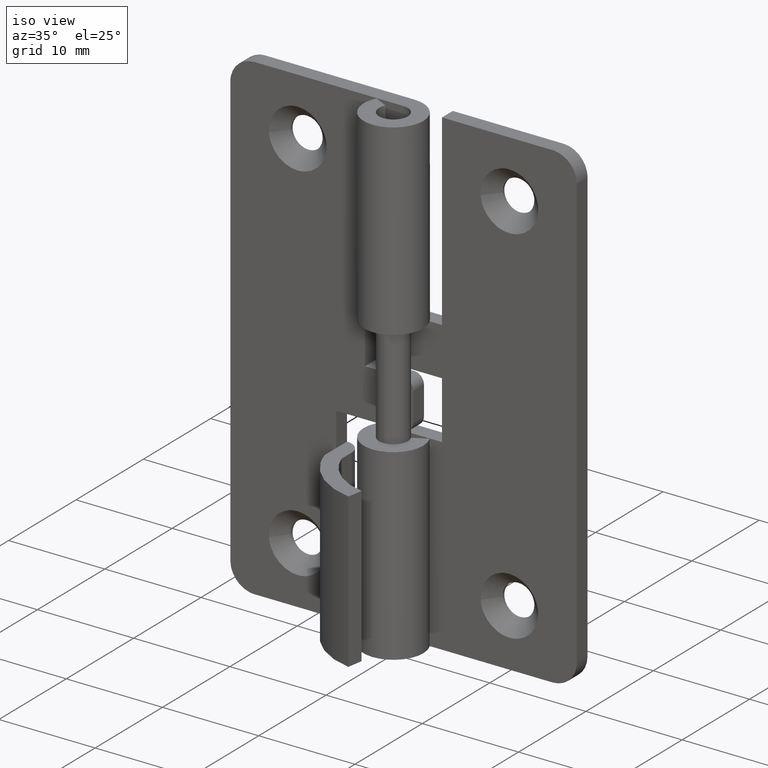
[diagram: clean part render]
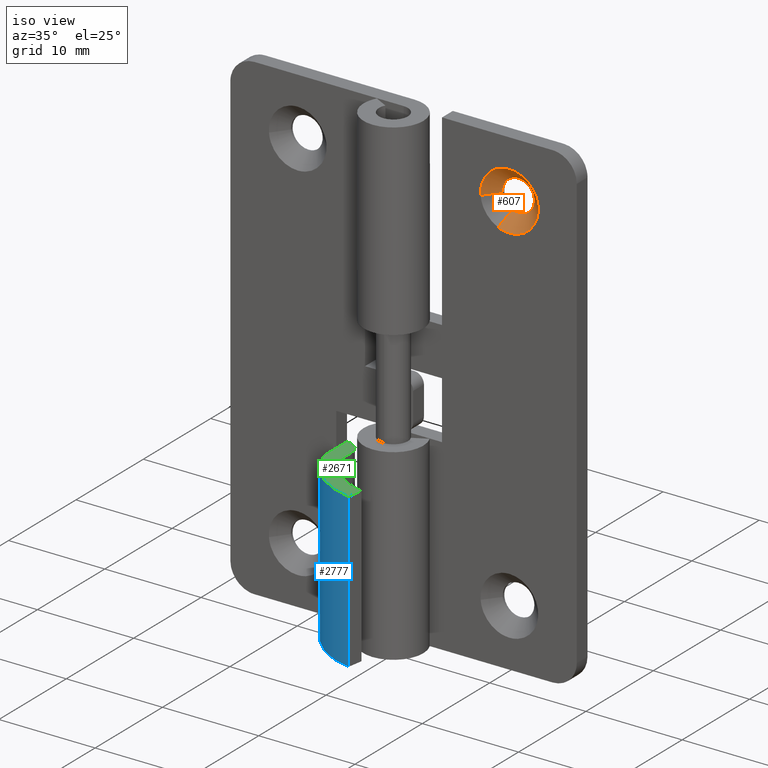
[diagram: same view with three faces highlighted in distinct colors, each labeled with its STEP entity id]
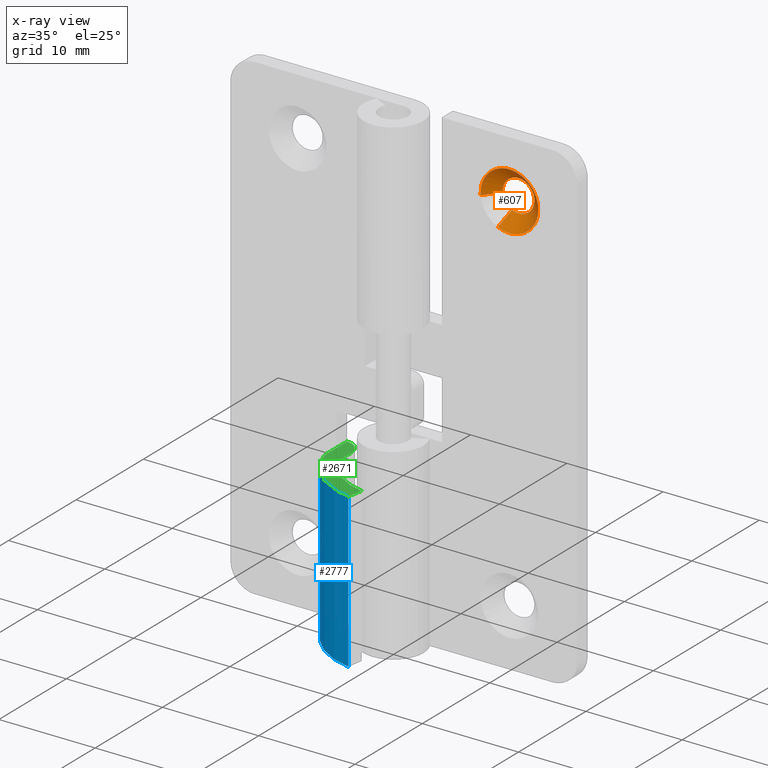
[diagram: x-ray of the same camera — body ghosted, the three highlighted faces saturated]
A machine part, iso view with three faces highlighted in distinct colors.
The next image is the same camera in x-ray (body ghosted, the three faces saturated) — at least one of them is partly hidden behind the body in this view.
Their STEP definitions:

[orange] entity #607 — the highlighted face is a freeform B-spline surface patch.
#437=CARTESIAN_POINT('',(10.354550041056557,2.883750375000003,42.518216257050135));
#438=CARTESIAN_POINT('',(10.724514669456925,2.883750375000004,42.357063419905231));
#439=CARTESIAN_POINT('',(11.126810111720740,2.883750375000003,42.388724757859173));
#440=CARTESIAN_POINT('',(12.738085353861569,2.883750375000003,42.515534869579902));
#441=CARTESIAN_POINT('',(12.611275242140840,2.883750375000003,44.126810111720737));
#442=CARTESIAN_POINT('',(12.484465130420100,2.883750375000003,45.738085353861578));
#443=CARTESIAN_POINT('',(10.873189888279271,2.883750375000003,45.611275242140842));
#444=CARTESIAN_POINT('',(9.261914646138431,2.883750375000003,45.484465130420105));
#445=CARTESIAN_POINT('',(9.388724757859166,2.883750375000003,43.873189888279263));
#446=CARTESIAN_POINT('',(9.788130385592778,1.465390865624893,41.217865353740144));
#447=CARTESIAN_POINT('',(10.482760364805696,1.465390865624893,40.915291584998897));
#448=CARTESIAN_POINT('',(11.238093316243299,1.465390865624893,40.974737577497898));
#449=CARTESIAN_POINT('',(14.263355738745398,1.465390865624894,41.212830893741192));
#450=CARTESIAN_POINT('',(14.025262422502101,1.465390865624893,44.238093316243287));
#451=CARTESIAN_POINT('',(13.787169106258805,1.465390865624894,47.263355738745403));
#452=CARTESIAN_POINT('',(10.761906683756701,1.465390865624893,47.025262422502102));
#453=CARTESIAN_POINT('',(7.736644261254600,1.465390865624894,46.787169106258816));
#454=CARTESIAN_POINT('',(7.974737577497898,1.465390865624893,43.761906683756713));
#462=(BOUNDED_SURFACE()B_SPLINE_SURFACE(2,1,((#437,#446),(#438,#447),(#439,#448),(#440,#449),(#441,#450),(#442,#451),(#443,#452),(#444,#453),(#445,#454)),.UNSPECIFIED.,.F.,.F.,.U.)B_SPLINE_SURFACE_WITH_KNOTS((3,2,2,2,3),(2,2),(0.0,1.608933854294976,6.636852148966779,11.664770443638581,16.692688738310380),(0.0,2.005863254479135),.UNSPECIFIED.)GEOMETRIC_REPRESENTATION_ITEM()RATIONAL_B_SPLINE_SURFACE(((0.872532871172385,0.872532871172385),(0.906274169979695,0.906274169979695),(1.0,1.0),(0.707106781186548,0.707106781186548),(1.0,1.0),(0.707106781186548,0.707106781186548),(1.0,1.0),(0.707106781186548,0.707106781186548),(1.0,1.0)))REPRESENTATION_ITEM('')SURFACE());
#463=CARTESIAN_POINT('',(11.0,2.850000000000000,42.349991999999993));
#464=VERTEX_POINT('',#463);
#465=CARTESIAN_POINT('',(10.341071881428840,2.849999999993951,42.487273939326670));
#466=VERTEX_POINT('',#465);
#467=CARTESIAN_POINT('',(11.0,2.850000000000000,42.349991999999993));
#468=CARTESIAN_POINT('',(10.656235191980297,2.850000000000001,42.349991999999986));
#469=CARTESIAN_POINT('',(10.341071881428839,2.849999999993951,42.487273939326670));
#477=(BOUNDED_CURVE()B_SPLINE_CURVE(2,(#467,#468,#469),.UNSPECIFIED.,.F.,.U.)B_SPLINE_CURVE_WITH_KNOTS((3,3),(0.500000000000000,0.567808084322643),.UNSPECIFIED.)CURVE()GEOMETRIC_REPRESENTATION_ITEM()RATIONAL_B_SPLINE_CURVE((1.0,0.920557887684669,0.884210314974512))REPRESENTATION_ITEM(''));
#478=EDGE_CURVE('',#464,#466,#477,.T.);
#479=ORIENTED_EDGE('',*,*,#478,.T.);
#480=CARTESIAN_POINT('',(9.801945499128518,1.499984999998828,41.249581229434767));
#481=VERTEX_POINT('',#480);
#482=CARTESIAN_POINT('',(10.341071881428840,2.849999999993951,42.487273939326670));
#483=CARTESIAN_POINT('',(9.801945499128518,1.499984999998828,41.249581229434767));
#484=QUASI_UNIFORM_CURVE('',1,(#482,#483),.UNSPECIFIED.,.F.,.U.);
#485=EDGE_CURVE('',#466,#481,#484,.T.);
#486=ORIENTED_EDGE('',*,*,#485,.T.);
#487=CARTESIAN_POINT('',(11.0,1.499984999999896,40.999976999999909));
#488=VERTEX_POINT('',#487);
#489=CARTESIAN_POINT('',(11.0,1.499984999999896,40.999976999999909));
#490=CARTESIAN_POINT('',(10.374971315020819,1.499984999999896,40.999976999999916));
#491=CARTESIAN_POINT('',(9.801945499128518,1.499984999998828,41.249581229434767));
#499=(BOUNDED_CURVE()B_SPLINE_CURVE(2,(#489,#490,#491),.UNSPECIFIED.,.F.,.U.)B_SPLINE_CURVE_WITH_KNOTS((3,3),(0.500000000000000,0.567808084310259),.UNSPECIFIED.)CURVE()GEOMETRIC_REPRESENTATION_ITEM()RATIONAL_B_SPLINE_CURVE((1.0,0.920557887699177,0.884210314987788))REPRESENTATION_ITEM(''));
#500=EDGE_CURVE('',#488,#481,#499,.T.);
#501=ORIENTED_EDGE('',*,*,#500,.F.);
#502=CARTESIAN_POINT('',(11.0,1.499984999999896,47.000023000000077));
#503=VERTEX_POINT('',#502);
#504=CARTESIAN_POINT('',(11.0,1.499984999999896,47.000023000000077));
#505=CARTESIAN_POINT('',(14.000023000000084,1.499984999999896,47.000023000000084));
#506=CARTESIAN_POINT('',(14.000023000000080,1.499984999999896,44.0));
#507=CARTESIAN_POINT('',(14.000023000000084,1.499984999999896,40.999976999999916));
#508=CARTESIAN_POINT('',(11.0,1.499984999999896,40.999976999999909));
#516=(BOUNDED_CURVE()B_SPLINE_CURVE(2,(#504,#505,#506,#507,#508),.UNSPECIFIED.,.F.,.U.)B_SPLINE_CURVE_WITH_KNOTS((3,2,3),(0.0,0.250000000000000,0.500000000000000),.UNSPECIFIED.)CURVE()GEOMETRIC_REPRESENTATION_ITEM()RATIONAL_B_SPLINE_CURVE((1.0,0.707106781186547,1.0,0.707106781186547,1.0))REPRESENTATION_ITEM(''));
#517=EDGE_CURVE('',#503,#488,#516,.T.);
#518=ORIENTED_EDGE('',*,*,#517,.F.);
#519=CARTESIAN_POINT('',(8.009225069701316,1.499984999998574,43.764620908247139));
#520=VERTEX_POINT('',#519);
#521=CARTESIAN_POINT('',(8.009225069701316,1.499984999998574,43.764620908247139));
#522=CARTESIAN_POINT('',(7.999976999999914,1.499984999999896,43.882128775294454));
#523=CARTESIAN_POINT('',(7.999976999999915,1.499984999999896,44.0));
#524=CARTESIAN_POINT('',(7.999976999999917,1.499984999999896,47.000023000000084));
#525=CARTESIAN_POINT('',(11.0,1.499984999999896,47.000023000000077));
#533=(BOUNDED_CURVE()B_SPLINE_CURVE(2,(#521,#522,#523,#524,#525),.UNSPECIFIED.,.F.,.U.)B_SPLINE_CURVE_WITH_KNOTS((3,2,3),(0.736331300631618,0.750000000000000,1.0),.UNSPECIFIED.)CURVE()GEOMETRIC_REPRESENTATION_ITEM()RATIONAL_B_SPLINE_CURVE((0.969723356169418,0.983986122580005,1.0,0.707106781186547,1.0))REPRESENTATION_ITEM(''));
#534=EDGE_CURVE('',#520,#503,#533,.T.);
#535=ORIENTED_EDGE('',*,*,#534,.F.);
#536=CARTESIAN_POINT('',(9.355078423970966,2.849999999923365,43.870541863789647));
#537=VERTEX_POINT('',#536);
#538=CARTESIAN_POINT('',(9.355078423970966,2.849999999923365,43.870541863789647));
#539=CARTESIAN_POINT('',(8.009225069701316,1.499984999998574,43.764620908247139));
#540=QUASI_UNIFORM_CURVE('',1,(#538,#539),.UNSPECIFIED.,.F.,.U.);
#541=EDGE_CURVE('',#537,#520,#540,.T.);
#542=ORIENTED_EDGE('',*,*,#541,.F.);
#543=CARTESIAN_POINT('',(9.362752809077492,2.850000000000000,44.204812196610348));
#544=VERTEX_POINT('',#543);
#545=CARTESIAN_POINT('',(9.355078423970966,2.849999999923365,43.870541863789647));
#546=CARTESIAN_POINT('',(9.349992000000000,2.850000000000000,43.935171008533167));
#547=CARTESIAN_POINT('',(9.349992000000000,2.850000000000000,44.0));
#548=CARTESIAN_POINT('',(9.349992000000002,2.850000000000001,44.102803629026113));
#549=CARTESIAN_POINT('',(9.362752809077492,2.850000000000000,44.204812196610348));
#557=(BOUNDED_CURVE()B_SPLINE_CURVE(2,(#545,#546,#547,#548,#549),.UNSPECIFIED.,.F.,.U.)B_SPLINE_CURVE_WITH_KNOTS((3,2,3),(0.736331300511747,0.750000000000000,0.771473929002555),.UNSPECIFIED.)CURVE()GEOMETRIC_REPRESENTATION_ITEM()RATIONAL_B_SPLINE_CURVE((0.969723355919257,0.983986122439568,1.0,0.974841727255481,0.954005430212903))REPRESENTATION_ITEM(''));
#558=EDGE_CURVE('',#537,#544,#557,.T.);
#559=ORIENTED_EDGE('',*,*,#558,.T.);
#560=CARTESIAN_POINT('',(11.0,2.850000000000000,45.650008000000000));
#561=VERTEX_POINT('',#560);
#562=CARTESIAN_POINT('',(9.362752809077492,2.850000000000000,44.204812196610348));
#563=CARTESIAN_POINT('',(9.543540248440554,2.850000000000000,45.650008000000007));
#564=CARTESIAN_POINT('',(11.0,2.850000000000000,45.650008000000000));
#572=(BOUNDED_CURVE()B_SPLINE_CURVE(2,(#562,#563,#564),.UNSPECIFIED.,.F.,.U.)B_SPLINE_CURVE_WITH_KNOTS((3,3),(0.771473929002554,1.0),.UNSPECIFIED.)CURVE()GEOMETRIC_REPRESENTATION_ITEM()RATIONAL_B_SPLINE_CURVE((0.954005430212905,0.732265053931066,1.0))REPRESENTATION_ITEM(''));
#573=EDGE_CURVE('',#544,#561,#572,.T.);
#574=ORIENTED_EDGE('',*,*,#573,.T.);
#575=CARTESIAN_POINT('',(12.649945172748970,2.850000000000000,43.985601146351698));
#576=VERTEX_POINT('',#575);
#577=CARTESIAN_POINT('',(11.0,2.850000000000000,45.650008000000000));
#578=CARTESIAN_POINT('',(12.650007999999998,2.850000000000001,45.650008000000007));
#579=CARTESIAN_POINT('',(12.650008000000000,2.850000000000000,44.0));
#580=CARTESIAN_POINT('',(12.650007999999994,2.850000000000000,43.992800435975312));
#581=CARTESIAN_POINT('',(12.649945172748964,2.850000000000000,43.985601146351698));
#589=(BOUNDED_CURVE()B_SPLINE_CURVE(2,(#577,#578,#579,#580,#581),.UNSPECIFIED.,.F.,.U.)B_SPLINE_CURVE_WITH_KNOTS((3,2,3),(0.0,0.250000000000000,0.251539894391291),.UNSPECIFIED.)CURVE()GEOMETRIC_REPRESENTATION_ITEM()RATIONAL_B_SPLINE_CURVE((1.0,0.707106781186548,1.0,0.998195901500407,0.996414027970102))REPRESENTATION_ITEM(''));
#590=EDGE_CURVE('',#561,#576,#589,.T.);
#591=ORIENTED_EDGE('',*,*,#590,.T.);
#592=CARTESIAN_POINT('',(12.649945172748962,2.850000000000001,43.985601146351698));
#593=CARTESIAN_POINT('',(12.635671427448532,2.850000000000000,42.349991999999993));
#594=CARTESIAN_POINT('',(11.0,2.850000000000000,42.349991999999993));
#602=(BOUNDED_CURVE()B_SPLINE_CURVE(2,(#592,#593,#594),.UNSPECIFIED.,.F.,.U.)B_SPLINE_CURVE_WITH_KNOTS((3,3),(0.251539894391291,0.500000000000000),.UNSPECIFIED.)CURVE()GEOMETRIC_REPRESENTATION_ITEM()RATIONAL_B_SPLINE_CURVE((0.996414027970102,0.708910879686140,1.0))REPRESENTATION_ITEM(''));
#603=EDGE_CURVE('',#576,#464,#602,.T.);
#604=ORIENTED_EDGE('',*,*,#603,.T.);
#605=EDGE_LOOP('',(#479,#486,#501,#518,#535,#542,#559,#574,#591,#604));
#606=FACE_OUTER_BOUND('',#605,.T.);
#607=ADVANCED_FACE('',(#606),#462,.F.);

[blue] entity #2777 — the highlighted face is a freeform B-spline surface patch.
#2627=CARTESIAN_POINT('',(-7.000008000000000,-0.225592976465989,16.0));
#2628=VERTEX_POINT('',#2627);
#2634=CARTESIAN_POINT('',(-0.549651998060424,-5.902137139268501,16.0));
#2635=VERTEX_POINT('',#2634);
#2636=CARTESIAN_POINT('',(-0.549651998060423,-5.902137139268496,16.0));
#2637=CARTESIAN_POINT('',(-5.550609790924318,-5.081714564584044,16.0));
#2638=CARTESIAN_POINT('',(-7.000008000000000,-0.225592976465989,16.0));
#2646=(BOUNDED_CURVE()B_SPLINE_CURVE(2,(#2636,#2637,#2638),.UNSPECIFIED.,.F.,.U.)CURVE()GEOMETRIC_REPRESENTATION_ITEM()QUASI_UNIFORM_CURVE()RATIONAL_B_SPLINE_CURVE((1.0,0.847748557675014,1.0))REPRESENTATION_ITEM(''));
#2647=EDGE_CURVE('',#2635,#2628,#2646,.T.);
#2733=CARTESIAN_POINT('',(-7.091431953315174,0.106295451071208,16.399999999999999));
#2734=CARTESIAN_POINT('',(-7.091431953315174,0.106295451071208,-0.410000000000000));
#2735=CARTESIAN_POINT('',(-5.713849204464831,-5.344483120580999,16.400000000000006));
#2736=CARTESIAN_POINT('',(-5.713849204464831,-5.344483120580999,-0.410000000000000));
#2737=CARTESIAN_POINT('',(-0.125508956195970,-5.960254617722018,16.399999999999995));
#2738=CARTESIAN_POINT('',(-0.125508956195970,-5.960254617722018,-0.410000000000000));
#2746=(BOUNDED_SURFACE()B_SPLINE_SURFACE(1,2,((#2733,#2735,#2737),(#2734,#2736,#2738)),.UNSPECIFIED.,.F.,.F.,.U.)B_SPLINE_SURFACE_WITH_KNOTS((2,2),(3,3),(0.0,16.809999999999999),(0.0,10.142413035661690),.UNSPECIFIED.)GEOMETRIC_REPRESENTATION_ITEM()RATIONAL_B_SPLINE_SURFACE(((1.0,0.818209199910696,0.991992944881676),(1.0,0.818209199910696,0.991992944881676)))REPRESENTATION_ITEM('')SURFACE());
#2747=CARTESIAN_POINT('',(-0.549651998060424,-5.902137139268501,0.0));
#2748=VERTEX_POINT('',#2747);
#2749=CARTESIAN_POINT('',(-7.000008000000000,-0.225592976465989,0.0));
#2750=VERTEX_POINT('',#2749);
#2751=CARTESIAN_POINT('',(-0.549651998060423,-5.902137139268496,0.0));
#2752=CARTESIAN_POINT('',(-5.550609790924318,-5.081714564584044,0.0));
#2753=CARTESIAN_POINT('',(-7.000008000000000,-0.225592976465989,0.0));
#2761=(BOUNDED_CURVE()B_SPLINE_CURVE(2,(#2751,#2752,#2753),.UNSPECIFIED.,.F.,.U.)CURVE()GEOMETRIC_REPRESENTATION_ITEM()QUASI_UNIFORM_CURVE()RATIONAL_B_SPLINE_CURVE((1.0,0.847748557675014,1.0))REPRESENTATION_ITEM(''));
#2762=EDGE_CURVE('',#2748,#2750,#2761,.T.);
#2763=ORIENTED_EDGE('',*,*,#2762,.F.);
#2764=CARTESIAN_POINT('',(-0.549651998060424,-5.902137139268501,16.0));
#2765=CARTESIAN_POINT('',(-0.549651998060424,-5.902137139268501,0.0));
#2766=QUASI_UNIFORM_CURVE('',1,(#2764,#2765),.UNSPECIFIED.,.F.,.U.);
#2767=EDGE_CURVE('',#2635,#2748,#2766,.T.);
#2768=ORIENTED_EDGE('',*,*,#2767,.F.);
#2769=ORIENTED_EDGE('',*,*,#2647,.T.);
#2770=CARTESIAN_POINT('',(-7.000008000000000,-0.225592976465989,16.0));
#2771=CARTESIAN_POINT('',(-7.000008000000000,-0.225592976465989,0.0));
#2772=QUASI_UNIFORM_CURVE('',1,(#2770,#2771),.UNSPECIFIED.,.F.,.U.);
#2773=EDGE_CURVE('',#2628,#2750,#2772,.T.);
#2774=ORIENTED_EDGE('',*,*,#2773,.T.);
#2775=EDGE_LOOP('',(#2763,#2768,#2769,#2774));
#2776=FACE_OUTER_BOUND('',#2775,.T.);
#2777=ADVANCED_FACE('',(#2776),#2746,.T.);

[green] entity #2671 — the highlighted face is a freeform B-spline surface patch.
#2560=CARTESIAN_POINT('',(-5.400009000000099,1.500002000000000,16.0));
#2561=VERTEX_POINT('',#2560);
#2562=CARTESIAN_POINT('',(-7.0,3.100002000000045,16.0));
#2563=VERTEX_POINT('',#2562);
#2564=CARTESIAN_POINT('',(-5.400009000000099,1.500002000000000,16.0));
#2565=CARTESIAN_POINT('',(-5.400009000000100,3.099993000025212,16.0));
#2566=CARTESIAN_POINT('',(-7.0,3.100002000000045,16.0));
#2574=(BOUNDED_CURVE()B_SPLINE_CURVE(2,(#2564,#2565,#2566),.UNSPECIFIED.,.F.,.U.)CURVE()GEOMETRIC_REPRESENTATION_ITEM()QUASI_UNIFORM_CURVE()RATIONAL_B_SPLINE_CURVE((1.0,0.707108769921595,1.0))REPRESENTATION_ITEM(''));
#2575=EDGE_CURVE('',#2561,#2563,#2574,.T.);
#2607=CARTESIAN_POINT('',(-7.335141568857775,3.549658917064260,16.0));
#2608=CARTESIAN_POINT('',(0.044504125263990,3.549658917064260,16.0));
#2609=CARTESIAN_POINT('',(-7.335141568857775,-6.351794217303506,16.0));
#2610=CARTESIAN_POINT('',(0.044504125263990,-6.351794217303506,16.0));
#2611=B_SPLINE_SURFACE_WITH_KNOTS('',1,1,((#2607,#2609),(#2608,#2610)),.UNSPECIFIED.,.F.,.F.,.U.,(2,2),(2,2),(0.0,7.379645694121765),(0.0,9.901453134367765),.UNSPECIFIED.);
#2612=CARTESIAN_POINT('',(-5.400009000000099,0.021241088680981,16.0));
#2613=VERTEX_POINT('',#2612);
#2614=CARTESIAN_POINT('',(-5.400009000000099,1.500002000000000,16.0));
#2615=CARTESIAN_POINT('',(-5.400009000000099,0.021241088680981,16.0));
#2616=QUASI_UNIFORM_CURVE('',1,(#2614,#2615),.UNSPECIFIED.,.F.,.U.);
#2617=EDGE_CURVE('',#2561,#2613,#2616,.T.);
#2618=ORIENTED_EDGE('',*,*,#2617,.F.);
#2619=ORIENTED_EDGE('',*,*,#2575,.T.);
#2620=CARTESIAN_POINT('',(-7.0,1.500000000000000,16.0));
#2621=VERTEX_POINT('',#2620);
#2622=CARTESIAN_POINT('',(-7.0,1.500000000000000,16.0));
#2623=CARTESIAN_POINT('',(-7.0,3.100002000000045,16.0));
#2624=QUASI_UNIFORM_CURVE('',1,(#2622,#2623),.UNSPECIFIED.,.F.,.U.);
#2625=EDGE_CURVE('',#2621,#2563,#2624,.T.);
#2626=ORIENTED_EDGE('',*,*,#2625,.F.);
#2627=CARTESIAN_POINT('',(-7.000008000000000,-0.225592976465989,16.0));
#2628=VERTEX_POINT('',#2627);
#2629=CARTESIAN_POINT('',(-7.000008000000000,-0.225592976465989,16.0));
#2630=CARTESIAN_POINT('',(-7.0,1.500000000000000,16.0));
#2631=QUASI_UNIFORM_CURVE('',1,(#2629,#2630),.UNSPECIFIED.,.F.,.U.);
#2632=EDGE_CURVE('',#2628,#2621,#2631,.T.);
#2633=ORIENTED_EDGE('',*,*,#2632,.F.);
#2634=CARTESIAN_POINT('',(-0.549651998060424,-5.902137139268501,16.0));
#2635=VERTEX_POINT('',#2634);
#2636=CARTESIAN_POINT('',(-0.549651998060423,-5.902137139268496,16.0));
#2637=CARTESIAN_POINT('',(-5.550609790924318,-5.081714564584044,16.0));
#2638=CARTESIAN_POINT('',(-7.000008000000000,-0.225592976465989,16.0));
#2646=(BOUNDED_CURVE()B_SPLINE_CURVE(2,(#2636,#2637,#2638),.UNSPECIFIED.,.F.,.U.)CURVE()GEOMETRIC_REPRESENTATION_ITEM()QUASI_UNIFORM_CURVE()RATIONAL_B_SPLINE_CURVE((1.0,0.847748557675014,1.0))REPRESENTATION_ITEM(''));
#2647=EDGE_CURVE('',#2635,#2628,#2646,.T.);
#2648=ORIENTED_EDGE('',*,*,#2647,.F.);
#2649=CARTESIAN_POINT('',(-0.290629503580303,-4.323242795953120,16.0));
#2650=VERTEX_POINT('',#2649);
#2651=CARTESIAN_POINT('',(-0.290629503580303,-4.323242795953120,16.0));
#2652=CARTESIAN_POINT('',(-0.549651998060424,-5.902137139268501,16.0));
#2653=QUASI_UNIFORM_CURVE('',1,(#2651,#2652),.UNSPECIFIED.,.F.,.U.);
#2654=EDGE_CURVE('',#2650,#2635,#2653,.T.);
#2655=ORIENTED_EDGE('',*,*,#2654,.F.);
#2656=CARTESIAN_POINT('',(-0.290629503580302,-4.323242795953121,16.0));
#2657=CARTESIAN_POINT('',(-4.153518889029209,-3.689523859181930,16.0));
#2658=CARTESIAN_POINT('',(-5.400009000000099,0.021241088680981,16.0));
#2666=(BOUNDED_CURVE()B_SPLINE_CURVE(2,(#2656,#2657,#2658),.UNSPECIFIED.,.F.,.U.)CURVE()GEOMETRIC_REPRESENTATION_ITEM()QUASI_UNIFORM_CURVE()RATIONAL_B_SPLINE_CURVE((1.0,0.856647176057252,1.0))REPRESENTATION_ITEM(''));
#2667=EDGE_CURVE('',#2650,#2613,#2666,.T.);
#2668=ORIENTED_EDGE('',*,*,#2667,.T.);
#2669=EDGE_LOOP('',(#2618,#2619,#2626,#2633,#2648,#2655,#2668));
#2670=FACE_OUTER_BOUND('',#2669,.T.);
#2671=ADVANCED_FACE('',(#2670),#2611,.F.);